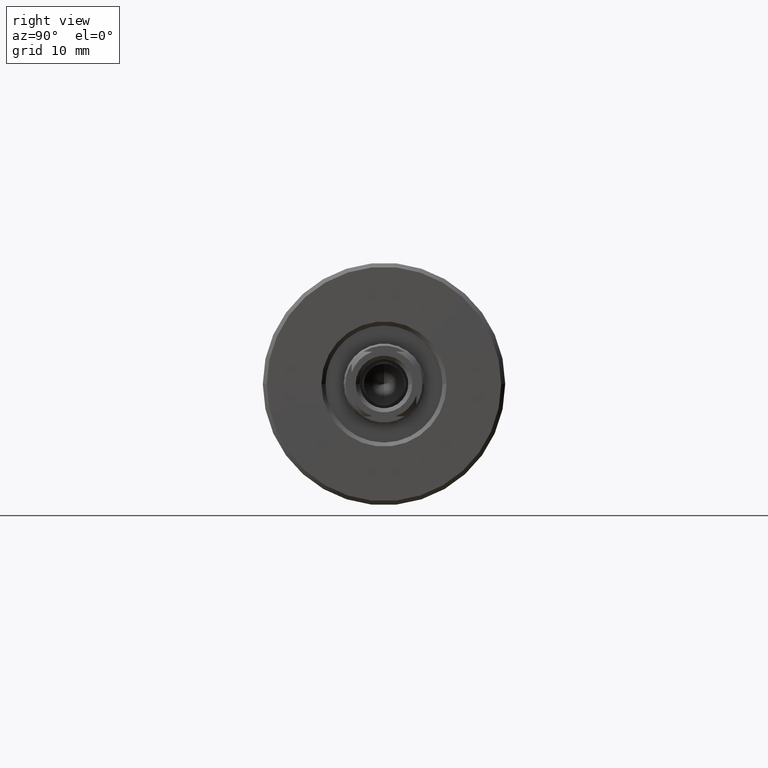
[diagram: clean part render]
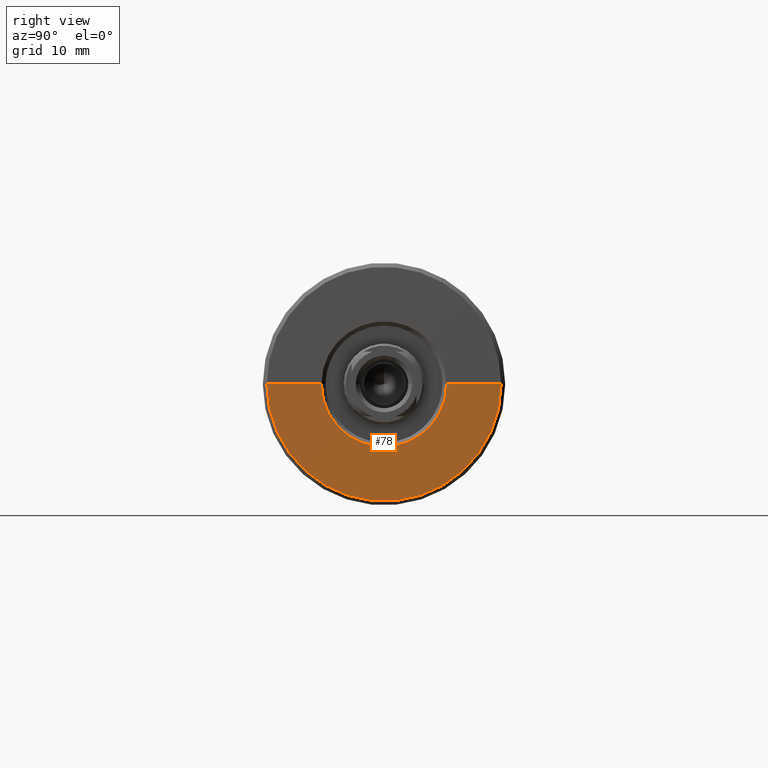
[diagram: same view with one face highlighted and labeled with its STEP entity id]
A machine part, right view. The second image highlights one B-rep face of the part: STEP entity #78.
In plain terms, the highlighted conical surface has half-angle 89.605 deg.
Its self-contained STEP definition (entity closure, byte-faithful):
#31 = ORIENTED_EDGE ( 'NONE', *, *, #95, .F. ) ;
#34 = EDGE_CURVE ( 'NONE', #2431, #2361, #2284, .T. ) ;
#56 = DIRECTION ( 'NONE',  ( -6.411747330388434316E-16, -1.000000000000000000, 0.000000000000000000 ) ) ;
#78 = ADVANCED_FACE ( 'NONE', ( #1397 ), #2115, .T. ) ;
#95 = EDGE_CURVE ( 'NONE', #1512, #2361, #1477, .T. ) ;
#115 = VECTOR ( 'NONE', #1109, 1000.000000000000114 ) ;
#135 = LINE ( 'NONE', #352, #115 ) ;
#237 = CARTESIAN_POINT ( 'NONE',  ( -0.1000000000006713574, -14.49999999999997335, 0.000000000000000000 ) ) ;
#253 = CARTESIAN_POINT ( 'NONE',  ( -0.1000000000006620593, -1.936230527284280752E-14, 0.000000000000000000 ) ) ;
#301 = ORIENTED_EDGE ( 'NONE', *, *, #34, .T. ) ;
#352 = CARTESIAN_POINT ( 'NONE',  ( -0.1000000000006527612, 14.49999999999993427, 1.775737858763656690E-15 ) ) ;
#442 = CARTESIAN_POINT ( 'NONE',  ( -0.1000000000006620593, -1.936230527284280752E-14, 0.000000000000000000 ) ) ;
#468 = VECTOR ( 'NONE', #1365, 1000.000000000000114 ) ;
#537 = ORIENTED_EDGE ( 'NONE', *, *, #1031, .T. ) ;
#555 = CARTESIAN_POINT ( 'NONE',  ( -0.1000000000006713574, -14.49999999999997335, 0.000000000000000000 ) ) ;
#652 = DIRECTION ( 'NONE',  ( -1.000000000000000000, 6.415603269213350828E-16, -0.000000000000000000 ) ) ;
#714 = DIRECTION ( 'NONE',  ( -6.417787222120274911E-16, -1.000000000000000000, 0.000000000000000000 ) ) ;
#876 = CIRCLE ( 'NONE', #1236, 7.749988109817764759 ) ;
#1031 = EDGE_CURVE ( 'NONE', #2387, #2431, #876, .T. ) ;
#1089 = ORIENTED_EDGE ( 'NONE', *, *, #1427, .F. ) ;
#1109 = DIRECTION ( 'NONE',  ( -0.006896387721668857836, 0.9999762196354432531, 1.224617676600016245E-16 ) ) ;
#1110 = CARTESIAN_POINT ( 'NONE',  ( -0.05344819386122132837, -7.749988109817783410, 0.000000000000000000 ) ) ;
#1189 = DIRECTION ( 'NONE',  ( -6.411747330388434316E-16, -1.000000000000000000, 0.000000000000000000 ) ) ;
#1236 = AXIS2_PLACEMENT_3D ( 'NONE', #1829, #2062, #714 ) ;
#1360 = AXIS2_PLACEMENT_3D ( 'NONE', #442, #652, #56 ) ;
#1365 = DIRECTION ( 'NONE',  ( -0.006896387721670141531, -0.9999762196354432531, 0.000000000000000000 ) ) ;
#1397 = FACE_OUTER_BOUND ( 'NONE', #1455, .T. ) ;
#1427 = EDGE_CURVE ( 'NONE', #2387, #1512, #135, .T. ) ;
#1455 = EDGE_LOOP ( 'NONE', ( #1089, #537, #301, #31 ) ) ;
#1477 = CIRCLE ( 'NONE', #1915, 14.49999999999995381 ) ;
#1512 = VERTEX_POINT ( 'NONE', #2435 ) ;
#1829 = CARTESIAN_POINT ( 'NONE',  ( -0.05344819386121635318, -1.939217106480840415E-14, 0.000000000000000000 ) ) ;
#1915 = AXIS2_PLACEMENT_3D ( 'NONE', #253, #2155, #1189 ) ;
#2062 = DIRECTION ( 'NONE',  ( -1.000000000000000000, 6.415603269213350828E-16, -0.000000000000000000 ) ) ;
#2100 = CARTESIAN_POINT ( 'NONE',  ( -0.05344819386121137800, 7.749988109817745219, 1.362418835987746714E-15 ) ) ;
#2115 = CONICAL_SURFACE ( 'NONE', #1360, 14.49999999999995381, 1.563899884406502405 ) ;
#2155 = DIRECTION ( 'NONE',  ( -1.000000000000000000, 6.415603269213350828E-16, -0.000000000000000000 ) ) ;
#2284 = LINE ( 'NONE', #237, #468 ) ;
#2361 = VERTEX_POINT ( 'NONE', #555 ) ;
#2387 = VERTEX_POINT ( 'NONE', #2100 ) ;
#2431 = VERTEX_POINT ( 'NONE', #1110 ) ;
#2435 = CARTESIAN_POINT ( 'NONE',  ( -0.1000000000006527612, 14.49999999999993427, 1.806354028742341858E-15 ) ) ;